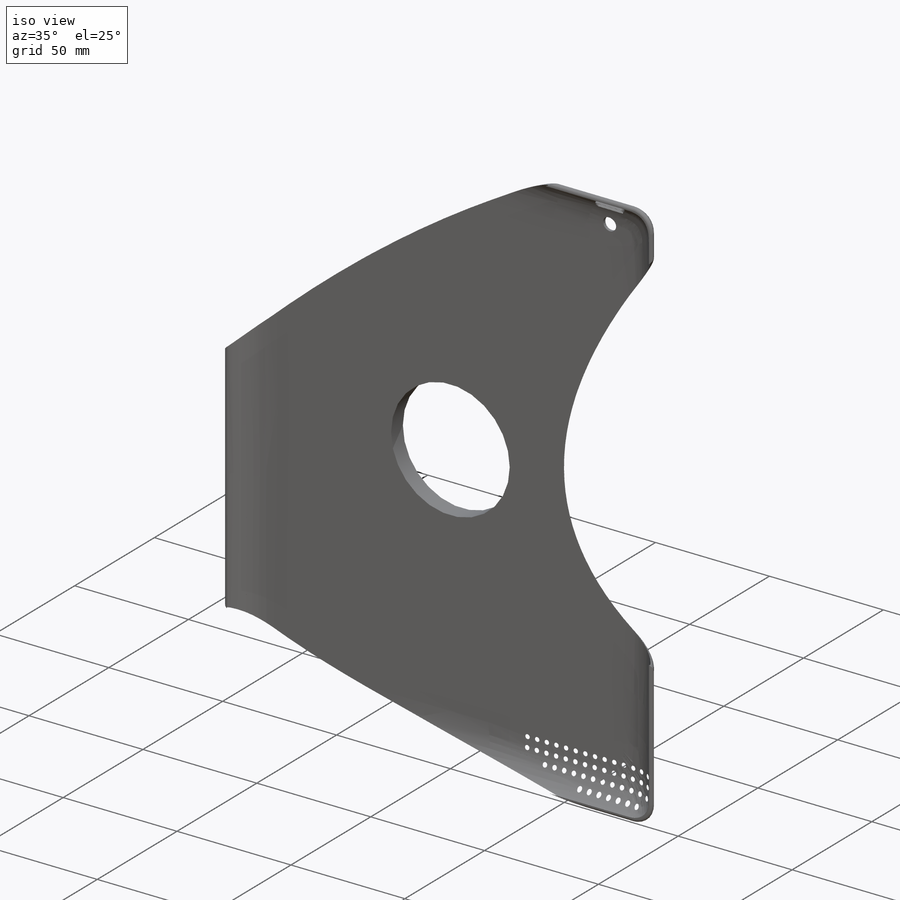
[diagram: iso view]
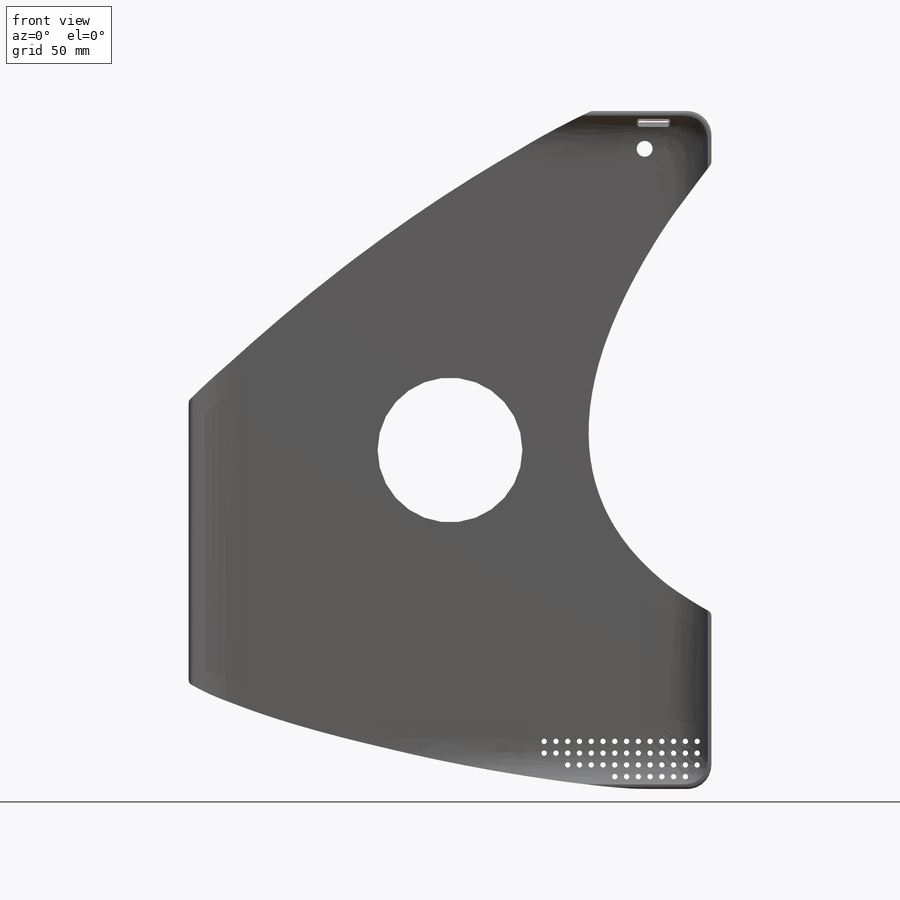
[diagram: front view]
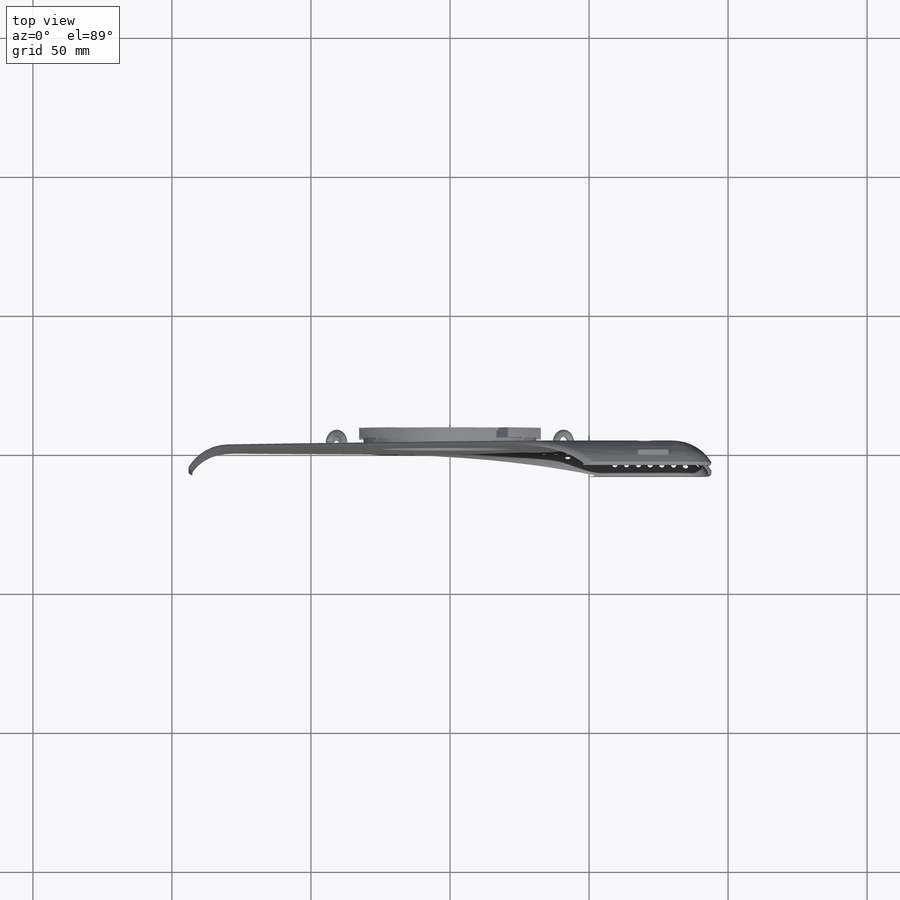
[diagram: top view]
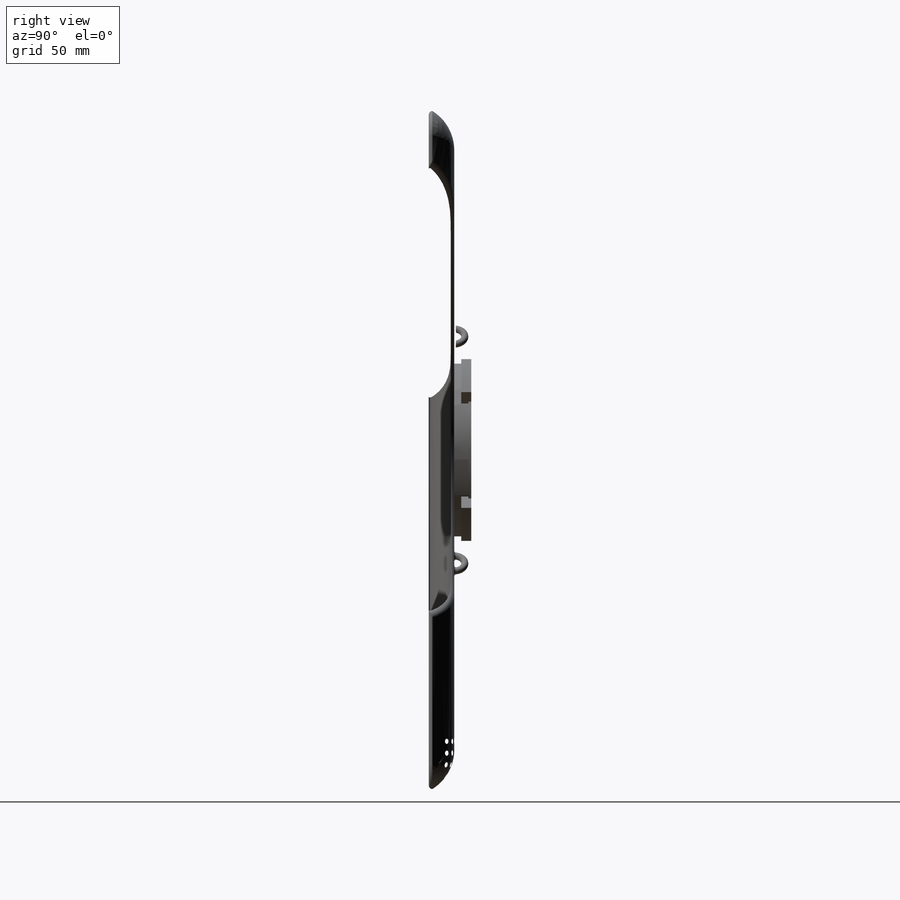
[diagram: right view]
SOLIDWORKS PART (.sldprt)
format: sldprt  version: not decoded by parser v0  size: 4,276,736 bytes
history: native  units: mm
features: sketch x17, cut_extrude x7, plane x6, fillet x4, revolve x4, extrude x2, material x1, boolean_combine x1, mirror x1, pattern_circular x1, pattern_linear x1 + 1 further entry (+16 scaffold rows collapsed; 3 parser-record rows omitted)
feature tree (65):
  scaffold x16  (default folders/planes/origin — collapsed)
  material  "Material <not specified>"
  "IPAD2_ajk"
  parser-record x3  (decoder bookkeeping rows leaked as tree rows — omitted from the tree; the rows remain in map.json)
  sketch  "Sketch1"  dims[c1.D5=8.636mm c1.D1=93.98mm c1.D2=93.98mm c1.D3=~97.89142mm c2.D3=90.0deg c3.D3=121.92mm c3.D4=121.92mm]
  extrude  "Boss-Extrude1"  Depth=7.874mm
  boolean_combine  "Combine1"
  fillet  "Fillet1"  Radius=1.27mm
  fillet  "Fillet2"  Radius=16.51mm
  plane  "Plane1"  Offset=8.636mm
  sketch  "Sketch7"  dims[D1=0.0mm]
  sketch  "Sketch6"
  plane  "Plane2"  Offset=125.476mm
  plane  "Plane3"  Offset=125.476mm
  sketch  "Sketch8"
  cut_extrude  "Cut-Extrude17"  Depth=23.622mm
  plane  "Plane4"  Offset=12.7mm
  sketch  "Sketch9"  dims[c1.D1=19.05mm c1.D2=101.6mm c1.D3=39.37mm c2.D1=38.1mm c2.D3=50.8mm c2.D4=19.05mm c2.D5=~63.525231mm c3.D5=~150.793841deg c4.D5=63.5mm c4.D6=25.4mm c4.D7=304.8mm c4.D8=304.8mm c4.D9=152.4mm c4.D10=152.4mm]
  cut_extrude  "Cut-Extrude19"  [1 undecoded]
  sketch  "Sketch10"  dims[D1=0.0mm]
  cut_extrude  "Cut-Extrude20"  [1 undecoded]
  plane  "Plane5"
  sketch  "Sketch11"  dims[D1=0.0mm]
  cut_extrude  "Cut-Extrude21"  [1 undecoded]
  fillet  "Fillet3"  Radius=2.54mm
  sketch  "Sketch13"  dims[D1=57.15mm]
  cut_extrude  "Cut-Extrude23"  [1 undecoded]
  sketch  "Sketch14"  dims[c1.D1=1.27mm c1.D2=1.27mm c1.D3=31.75mm c1.D4=44.45mm c1.D5=2.54mm c1.D6=~15.499475mm c2.D2=3.81mm c2.D4=50.8mm c2.D3=~9.242811mm c3.D3=45.0deg c3.D5=38.1mm c3.D4=38.1mm]
  revolve  "Revolve1"  Angle=180deg
  sketch  "Sketch15"  dims[c1.D1=31.75mm c1.D2=3.81mm c2.D1=~15.911481mm c3.D1=45.0deg c3.D3=38.1mm]
  revolve  "Revolve2"  Angle=180deg
  mirror  "Mirror1"
  fillet  "Fillet4"  Radius=0.635mm
  sketch  "Sketch16"  dims[D3=62.23mm D1=2.54mm D2=2.54mm]
  extrude  "Boss-Extrude2"  Depth=6.35mm
  sketch  "Sketch18"  dims[D1=1.27mm D2=1.27mm]
  revolve  "Revolve3"  Angle=360deg
  sketch  "Sketch21"  dims[c1.D1=~49.415674mm c2.D1=45.0deg]
  plane  "Plane6"
  sketch  "Sketch20"  dims[c1.D1=3.81mm c1.D2=3.81mm c2.D1=3.81mm c2.D2=7.62mm c2.D3=31.115mm c2.D4=6.35mm]
  revolve  "Revolve4"  Angle=25deg
  pattern_circular  "CirPattern1"  Count=4 Angle=360deg
  sketch  "Sketch22"  dims[D1=101.6mm]
  cut_extrude  "Cut-Extrude25"  Depth=0.254mm
  sketch  "Sketch24"  dims[D1=10.16mm]
  sketch  "Sketch23"  dims[c1.D1=1.905mm c1.D2=16.51mm c1.D3=16.51mm c2.D2=5.08mm c2.D3=17.145mm]
  cut_extrude  "Cut-Extrude26"  [1 undecoded]
  pattern_linear  "LPattern2"  Count1=14 Count2=4 Spacing1=4.233333mm Spacing2=4.233333mm
decode coverage: 29 of 38 modeling features carry decoded parameters; 1 rows unclassified (native names shown)
note: ~ marks probable driven/reference dimensions
note: 5 parameter values undecoded
summary: no parameter record found for 5 features
note: suppression state not decoded; provenance and decode notes live in map.json
